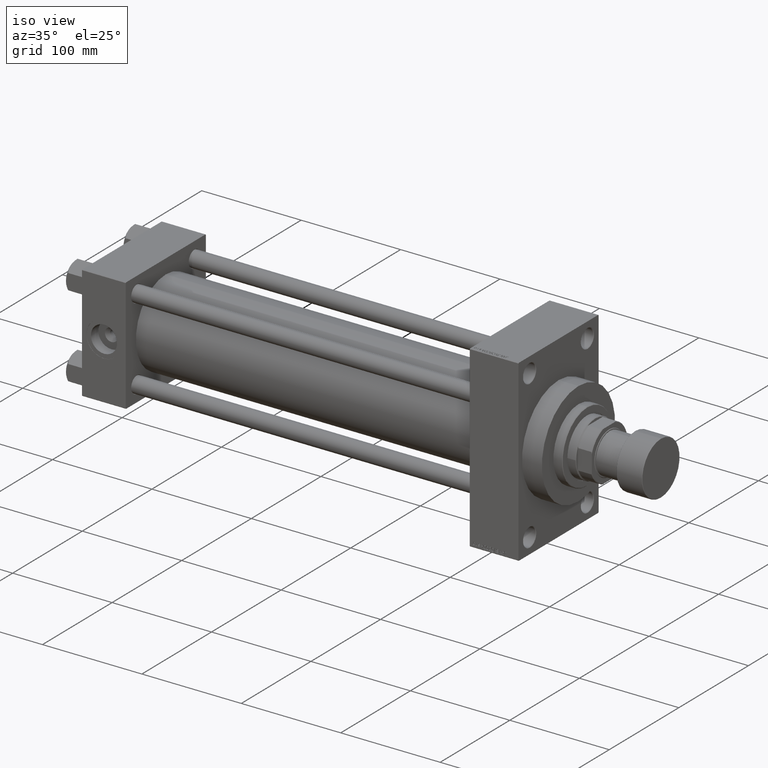
[diagram: clean part render]
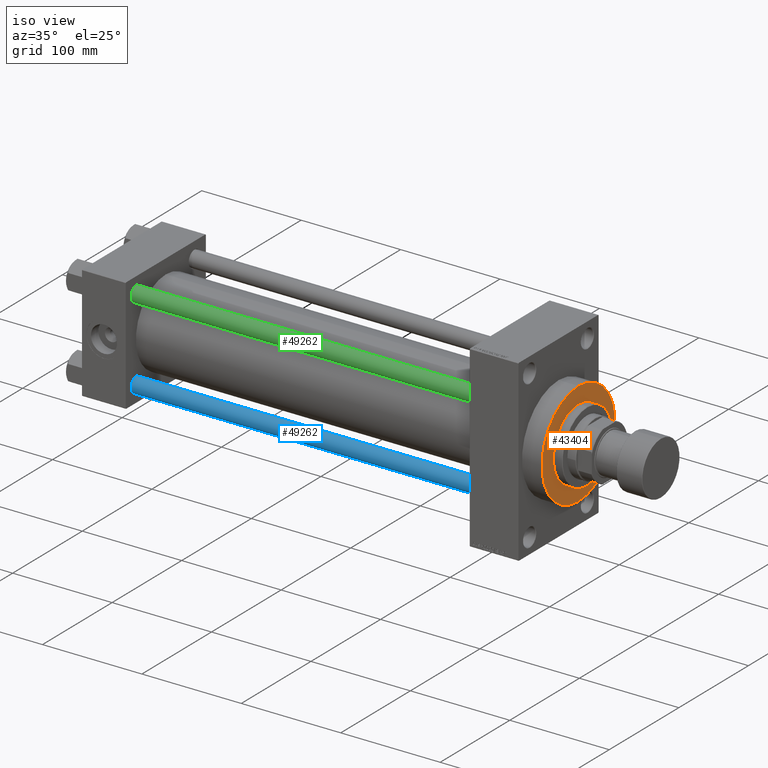
[diagram: same view with three faces highlighted in distinct colors, each labeled with its STEP entity id]
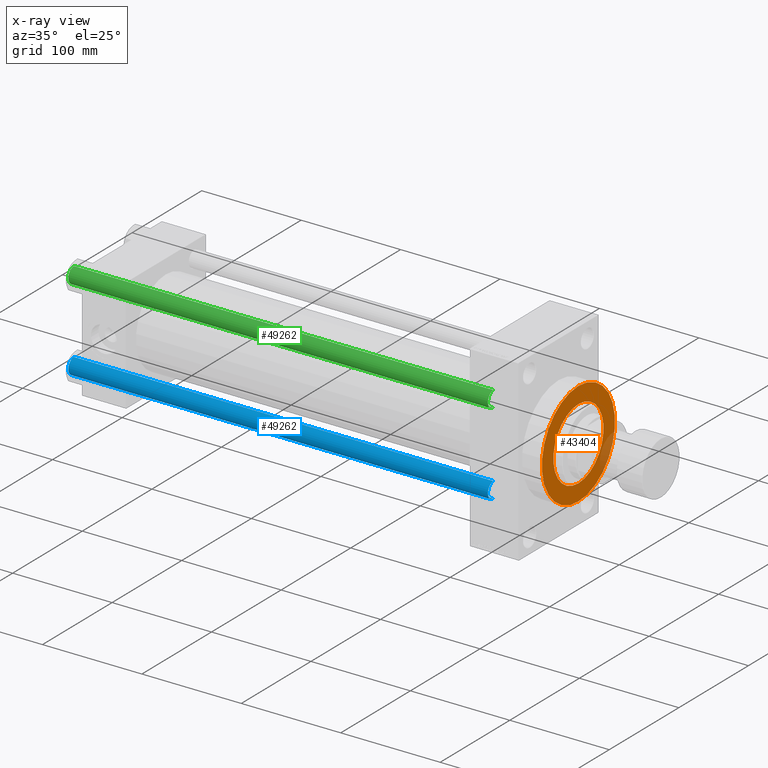
[diagram: x-ray of the same camera — body ghosted, the three highlighted faces saturated]
A machine part, iso view with three faces highlighted in distinct colors.
The next image is the same camera in x-ray (body ghosted, the three faces saturated) — at least one of them is partly hidden behind the body in this view.
Their STEP definitions:

[orange] entity #43404 — the highlighted planar face has unit normal (1, 0, 0).
#790 = PLANE ( 'NONE',  #43835 ) ;
#1423 = ORIENTED_EDGE ( 'NONE', *, *, #17155, .F. ) ;
#1712 = AXIS2_PLACEMENT_3D ( 'NONE', #26507, #14961, #29509 ) ;
#2656 = ORIENTED_EDGE ( 'NONE', *, *, #7552, .T. ) ;
#2895 = ORIENTED_EDGE ( 'NONE', *, *, #27119, .T. ) ;
#3118 = DIRECTION ( 'NONE',  ( 0.000000000000000000, 0.000000000000000000, -1.000000000000000000 ) ) ;
#5054 = FACE_BOUND ( 'NONE', #34562, .T. ) ;
#5475 = CIRCLE ( 'NONE', #23140, 36.00000000000000000 ) ;
#7552 = EDGE_CURVE ( 'NONE', #35613, #13898, #13456, .T. ) ;
#8131 = EDGE_CURVE ( 'NONE', #39513, #40271, #5475, .T. ) ;
#8576 = CARTESIAN_POINT ( 'NONE',  ( 458.9999999999999432, 0.000000000000000000, 0.000000000000000000 ) ) ;
#8817 = DIRECTION ( 'NONE',  ( 1.000000000000000000, 0.000000000000000000, 0.000000000000000000 ) ) ;
#9246 = DIRECTION ( 'NONE',  ( 0.000000000000000000, 0.000000000000000000, -1.000000000000000000 ) ) ;
#9754 = AXIS2_PLACEMENT_3D ( 'NONE', #10982, #29525, #33541 ) ;
#10982 = CARTESIAN_POINT ( 'NONE',  ( 458.9999999999999432, 0.000000000000000000, 0.000000000000000000 ) ) ;
#13456 = CIRCLE ( 'NONE', #30280, 52.50000000000000000 ) ;
#13898 = VERTEX_POINT ( 'NONE', #40410 ) ;
#14961 = DIRECTION ( 'NONE',  ( 1.000000000000000000, 0.000000000000000000, 0.000000000000000000 ) ) ;
#17079 = FACE_OUTER_BOUND ( 'NONE', #17835, .T. ) ;
#17155 = EDGE_CURVE ( 'NONE', #40271, #39513, #23362, .T. ) ;
#17835 = EDGE_LOOP ( 'NONE', ( #2656, #2895 ) ) ;
#18553 = CARTESIAN_POINT ( 'NONE',  ( 458.9999999999999432, 4.408728476930470856E-15, 36.00000000000000000 ) ) ;
#20973 = CIRCLE ( 'NONE', #9754, 52.50000000000000000 ) ;
#23140 = AXIS2_PLACEMENT_3D ( 'NONE', #47132, #43602, #9246 ) ;
#23362 = CIRCLE ( 'NONE', #1712, 36.00000000000000000 ) ;
#26507 = CARTESIAN_POINT ( 'NONE',  ( 458.9999999999999432, 0.000000000000000000, 0.000000000000000000 ) ) ;
#27119 = EDGE_CURVE ( 'NONE', #13898, #35613, #20973, .T. ) ;
#29509 = DIRECTION ( 'NONE',  ( 0.000000000000000000, 0.000000000000000000, -1.000000000000000000 ) ) ;
#29525 = DIRECTION ( 'NONE',  ( 1.000000000000000000, 0.000000000000000000, 0.000000000000000000 ) ) ;
#30280 = AXIS2_PLACEMENT_3D ( 'NONE', #40753, #48786, #3118 ) ;
#33254 = ORIENTED_EDGE ( 'NONE', *, *, #8131, .F. ) ;
#33541 = DIRECTION ( 'NONE',  ( 0.000000000000000000, 0.000000000000000000, -1.000000000000000000 ) ) ;
#34562 = EDGE_LOOP ( 'NONE', ( #33254, #1423 ) ) ;
#35613 = VERTEX_POINT ( 'NONE', #38606 ) ;
#36306 = CARTESIAN_POINT ( 'NONE',  ( 458.9999999999999432, 0.000000000000000000, -36.00000000000000000 ) ) ;
#38606 = CARTESIAN_POINT ( 'NONE',  ( 458.9999999999999432, 0.000000000000000000, 52.50000000000000000 ) ) ;
#39425 = DIRECTION ( 'NONE',  ( 0.000000000000000000, 0.000000000000000000, -1.000000000000000000 ) ) ;
#39513 = VERTEX_POINT ( 'NONE', #36306 ) ;
#40271 = VERTEX_POINT ( 'NONE', #18553 ) ;
#40410 = CARTESIAN_POINT ( 'NONE',  ( 458.9999999999999432, 6.429395695523603956E-15, -52.50000000000000000 ) ) ;
#40753 = CARTESIAN_POINT ( 'NONE',  ( 458.9999999999999432, 0.000000000000000000, 0.000000000000000000 ) ) ;
#43404 = ADVANCED_FACE ( 'NONE', ( #5054, #17079 ), #790, .T. ) ;
#43602 = DIRECTION ( 'NONE',  ( 1.000000000000000000, 0.000000000000000000, 0.000000000000000000 ) ) ;
#43835 = AXIS2_PLACEMENT_3D ( 'NONE', #8576, #8817, #39425 ) ;
#47132 = CARTESIAN_POINT ( 'NONE',  ( 458.9999999999999432, 0.000000000000000000, 0.000000000000000000 ) ) ;
#48786 = DIRECTION ( 'NONE',  ( 1.000000000000000000, 0.000000000000000000, 0.000000000000000000 ) ) ;

[blue] entity #49262 — the highlighted cylindrical surface (edge-blend (fillet) strip) has radius 8 mm, axis along (1, 0, 0).
#1729 = DIRECTION ( 'NONE',  ( 1.000000000000000000, 0.000000000000000000, 0.000000000000000000 ) ) ;
#3024 = CYLINDRICAL_SURFACE ( 'NONE', #22428, 8.000000000000000000 ) ;
#4075 = LINE ( 'NONE', #15103, #40923 ) ;
#4202 = CARTESIAN_POINT ( 'NONE',  ( 0.000000000000000000, 0.000000000000000000, 423.0000000000000000 ) ) ;
#4528 = DIRECTION ( 'NONE',  ( -0.000000000000000000, -0.000000000000000000, -1.000000000000000000 ) ) ;
#5574 = VECTOR ( 'NONE', #4528, 1000.000000000000000 ) ;
#7028 = CIRCLE ( 'NONE', #31847, 8.000000000000000000 ) ;
#9378 = VERTEX_POINT ( 'NONE', #21796 ) ;
#9852 = EDGE_CURVE ( 'NONE', #9378, #17290, #47414, .T. ) ;
#11482 = DIRECTION ( 'NONE',  ( -0.000000000000000000, -0.000000000000000000, -1.000000000000000000 ) ) ;
#13595 = EDGE_CURVE ( 'NONE', #30885, #42938, #4075, .T. ) ;
#13863 = EDGE_CURVE ( 'NONE', #9378, #30885, #28115, .T. ) ;
#15103 = CARTESIAN_POINT ( 'NONE',  ( 8.000000000000000000, 9.797174393178823685E-16, 423.0000000000000000 ) ) ;
#15541 = ORIENTED_EDGE ( 'NONE', *, *, #13863, .T. ) ;
#16529 = CARTESIAN_POINT ( 'NONE',  ( 0.000000000000000000, 0.000000000000000000, 0.5000000000003890221 ) ) ;
#17290 = VERTEX_POINT ( 'NONE', #35015 ) ;
#18083 = CARTESIAN_POINT ( 'NONE',  ( 0.000000000000000000, 0.000000000000000000, 422.5000000000002842 ) ) ;
#21796 = CARTESIAN_POINT ( 'NONE',  ( -8.000000000000000000, 0.000000000000000000, 422.5000000000002842 ) ) ;
#22428 = AXIS2_PLACEMENT_3D ( 'NONE', #4202, #11482, #46087 ) ;
#22746 = CARTESIAN_POINT ( 'NONE',  ( 8.000000000000000000, 9.797174393178823685E-16, 0.5000000000003890221 ) ) ;
#25751 = ORIENTED_EDGE ( 'NONE', *, *, #43647, .T. ) ;
#28080 = DIRECTION ( 'NONE',  ( -0.000000000000000000, -0.000000000000000000, 1.000000000000000000 ) ) ;
#28115 = CIRCLE ( 'NONE', #48153, 8.000000000000000000 ) ;
#30885 = VERTEX_POINT ( 'NONE', #46381 ) ;
#31847 = AXIS2_PLACEMENT_3D ( 'NONE', #16529, #28080, #1729 ) ;
#32868 = DIRECTION ( 'NONE',  ( 1.000000000000000000, 0.000000000000000000, 0.000000000000000000 ) ) ;
#33367 = DIRECTION ( 'NONE',  ( 0.000000000000000000, 0.000000000000000000, -1.000000000000000000 ) ) ;
#34675 = DIRECTION ( 'NONE',  ( -0.000000000000000000, -0.000000000000000000, -1.000000000000000000 ) ) ;
#35015 = CARTESIAN_POINT ( 'NONE',  ( -8.000000000000000000, 0.000000000000000000, 0.5000000000003890221 ) ) ;
#36395 = ORIENTED_EDGE ( 'NONE', *, *, #9852, .F. ) ;
#37390 = FACE_OUTER_BOUND ( 'NONE', #43820, .T. ) ;
#39733 = ORIENTED_EDGE ( 'NONE', *, *, #13595, .T. ) ;
#39883 = CARTESIAN_POINT ( 'NONE',  ( -8.000000000000000000, 0.000000000000000000, 423.0000000000000000 ) ) ;
#40923 = VECTOR ( 'NONE', #34675, 1000.000000000000000 ) ;
#42938 = VERTEX_POINT ( 'NONE', #22746 ) ;
#43647 = EDGE_CURVE ( 'NONE', #42938, #17290, #7028, .T. ) ;
#43820 = EDGE_LOOP ( 'NONE', ( #15541, #39733, #25751, #36395 ) ) ;
#46087 = DIRECTION ( 'NONE',  ( -1.000000000000000000, 0.000000000000000000, 0.000000000000000000 ) ) ;
#46381 = CARTESIAN_POINT ( 'NONE',  ( 8.000000000000000000, 9.797174393178823685E-16, 422.5000000000002842 ) ) ;
#47414 = LINE ( 'NONE', #39883, #5574 ) ;
#48153 = AXIS2_PLACEMENT_3D ( 'NONE', #18083, #33367, #32868 ) ;
#49262 = ADVANCED_FACE ( 'NONE', ( #37390 ), #3024, .T. ) ;

[green] entity #49262 — the highlighted cylindrical surface (edge-blend (fillet) strip) has radius 8 mm, axis along (-1, 0, -0).
#1729 = DIRECTION ( 'NONE',  ( 1.000000000000000000, 0.000000000000000000, 0.000000000000000000 ) ) ;
#3024 = CYLINDRICAL_SURFACE ( 'NONE', #22428, 8.000000000000000000 ) ;
#4075 = LINE ( 'NONE', #15103, #40923 ) ;
#4202 = CARTESIAN_POINT ( 'NONE',  ( 0.000000000000000000, 0.000000000000000000, 423.0000000000000000 ) ) ;
#4528 = DIRECTION ( 'NONE',  ( -0.000000000000000000, -0.000000000000000000, -1.000000000000000000 ) ) ;
#5574 = VECTOR ( 'NONE', #4528, 1000.000000000000000 ) ;
#7028 = CIRCLE ( 'NONE', #31847, 8.000000000000000000 ) ;
#9378 = VERTEX_POINT ( 'NONE', #21796 ) ;
#9852 = EDGE_CURVE ( 'NONE', #9378, #17290, #47414, .T. ) ;
#11482 = DIRECTION ( 'NONE',  ( -0.000000000000000000, -0.000000000000000000, -1.000000000000000000 ) ) ;
#13595 = EDGE_CURVE ( 'NONE', #30885, #42938, #4075, .T. ) ;
#13863 = EDGE_CURVE ( 'NONE', #9378, #30885, #28115, .T. ) ;
#15103 = CARTESIAN_POINT ( 'NONE',  ( 8.000000000000000000, 9.797174393178823685E-16, 423.0000000000000000 ) ) ;
#15541 = ORIENTED_EDGE ( 'NONE', *, *, #13863, .T. ) ;
#16529 = CARTESIAN_POINT ( 'NONE',  ( 0.000000000000000000, 0.000000000000000000, 0.5000000000003890221 ) ) ;
#17290 = VERTEX_POINT ( 'NONE', #35015 ) ;
#18083 = CARTESIAN_POINT ( 'NONE',  ( 0.000000000000000000, 0.000000000000000000, 422.5000000000002842 ) ) ;
#21796 = CARTESIAN_POINT ( 'NONE',  ( -8.000000000000000000, 0.000000000000000000, 422.5000000000002842 ) ) ;
#22428 = AXIS2_PLACEMENT_3D ( 'NONE', #4202, #11482, #46087 ) ;
#22746 = CARTESIAN_POINT ( 'NONE',  ( 8.000000000000000000, 9.797174393178823685E-16, 0.5000000000003890221 ) ) ;
#25751 = ORIENTED_EDGE ( 'NONE', *, *, #43647, .T. ) ;
#28080 = DIRECTION ( 'NONE',  ( -0.000000000000000000, -0.000000000000000000, 1.000000000000000000 ) ) ;
#28115 = CIRCLE ( 'NONE', #48153, 8.000000000000000000 ) ;
#30885 = VERTEX_POINT ( 'NONE', #46381 ) ;
#31847 = AXIS2_PLACEMENT_3D ( 'NONE', #16529, #28080, #1729 ) ;
#32868 = DIRECTION ( 'NONE',  ( 1.000000000000000000, 0.000000000000000000, 0.000000000000000000 ) ) ;
#33367 = DIRECTION ( 'NONE',  ( 0.000000000000000000, 0.000000000000000000, -1.000000000000000000 ) ) ;
#34675 = DIRECTION ( 'NONE',  ( -0.000000000000000000, -0.000000000000000000, -1.000000000000000000 ) ) ;
#35015 = CARTESIAN_POINT ( 'NONE',  ( -8.000000000000000000, 0.000000000000000000, 0.5000000000003890221 ) ) ;
#36395 = ORIENTED_EDGE ( 'NONE', *, *, #9852, .F. ) ;
#37390 = FACE_OUTER_BOUND ( 'NONE', #43820, .T. ) ;
#39733 = ORIENTED_EDGE ( 'NONE', *, *, #13595, .T. ) ;
#39883 = CARTESIAN_POINT ( 'NONE',  ( -8.000000000000000000, 0.000000000000000000, 423.0000000000000000 ) ) ;
#40923 = VECTOR ( 'NONE', #34675, 1000.000000000000000 ) ;
#42938 = VERTEX_POINT ( 'NONE', #22746 ) ;
#43647 = EDGE_CURVE ( 'NONE', #42938, #17290, #7028, .T. ) ;
#43820 = EDGE_LOOP ( 'NONE', ( #15541, #39733, #25751, #36395 ) ) ;
#46087 = DIRECTION ( 'NONE',  ( -1.000000000000000000, 0.000000000000000000, 0.000000000000000000 ) ) ;
#46381 = CARTESIAN_POINT ( 'NONE',  ( 8.000000000000000000, 9.797174393178823685E-16, 422.5000000000002842 ) ) ;
#47414 = LINE ( 'NONE', #39883, #5574 ) ;
#48153 = AXIS2_PLACEMENT_3D ( 'NONE', #18083, #33367, #32868 ) ;
#49262 = ADVANCED_FACE ( 'NONE', ( #37390 ), #3024, .T. ) ;